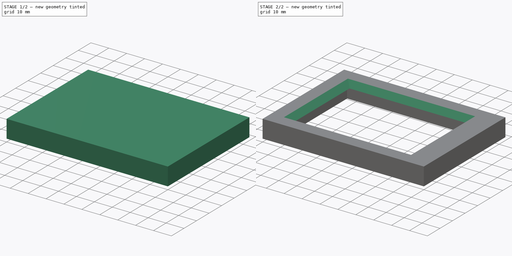
[diagram: build sequence overview — one tinted view per stage of 2, left to right]
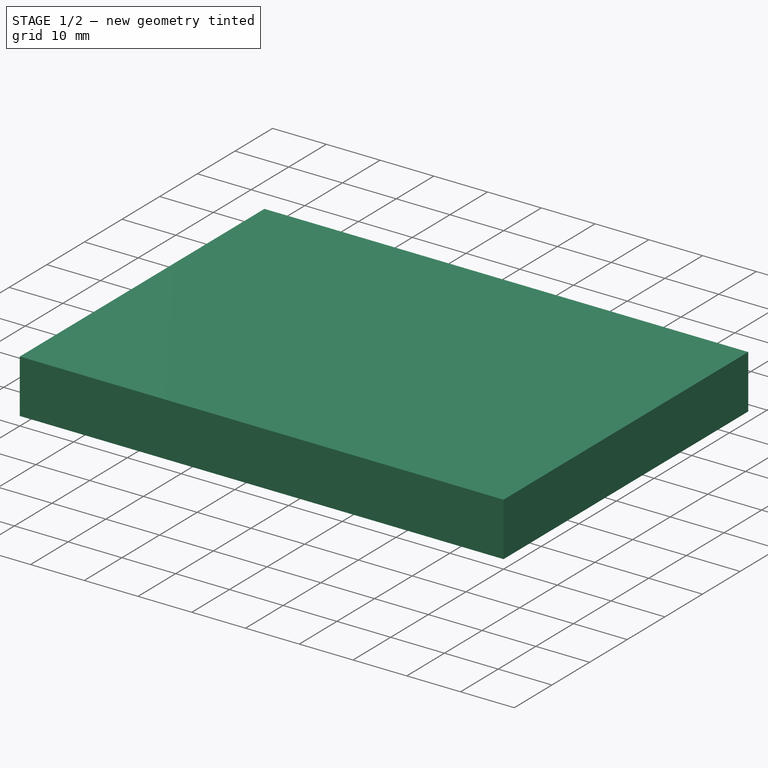
[diagram: stage 1 of 2 — iso view after this stage's code; geometry added in this stage tinted green]
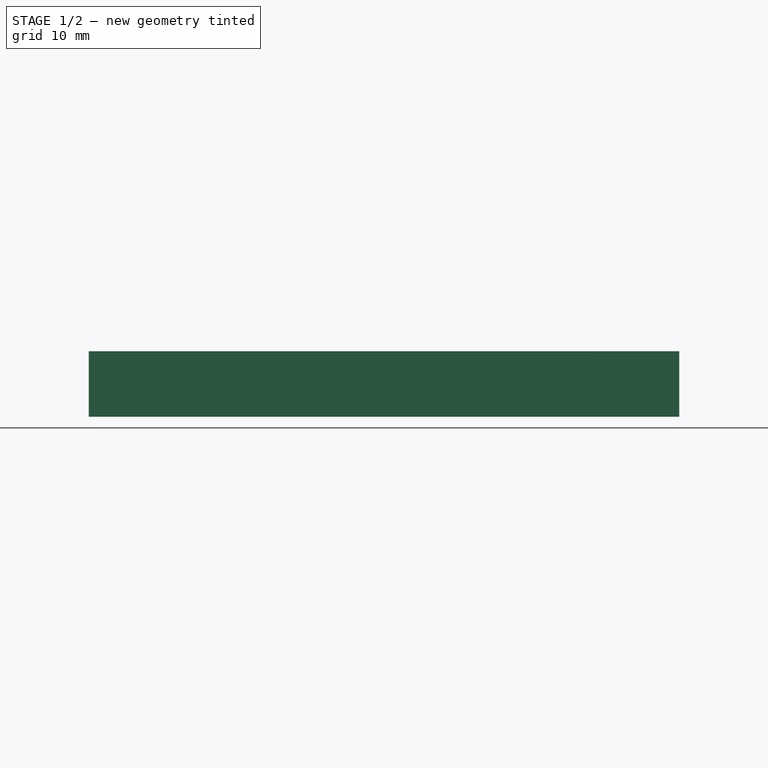
[diagram: stage 1 of 2 — front view after this stage's code; geometry added in this stage tinted green]
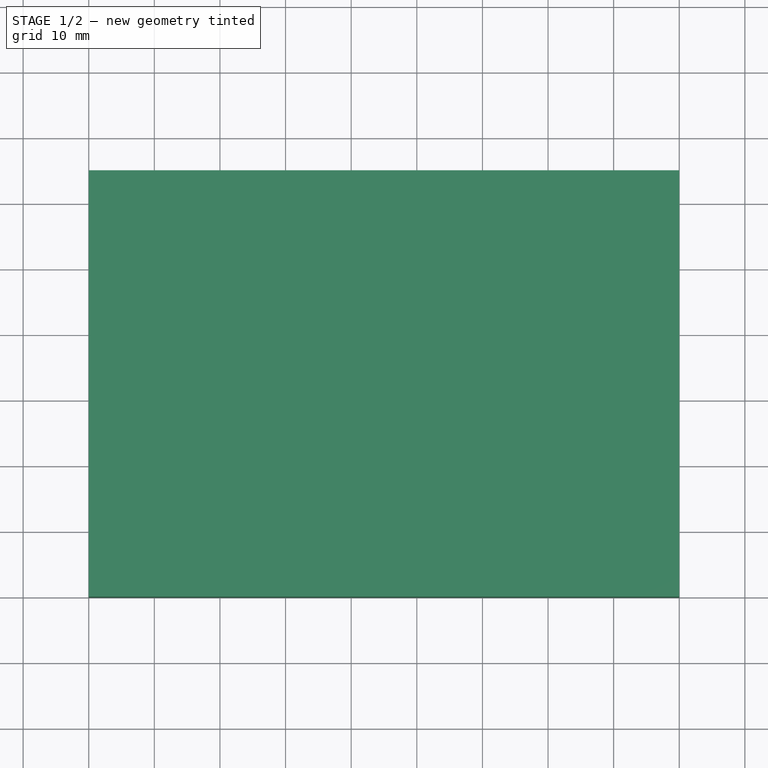
[diagram: stage 1 of 2 — top view after this stage's code; geometry added in this stage tinted green]
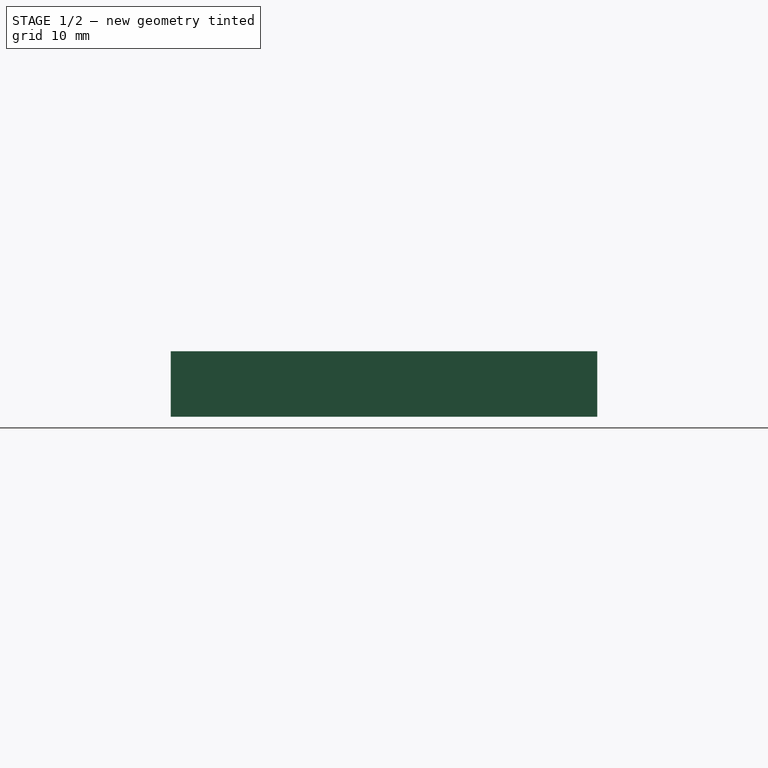
[diagram: stage 1 of 2 — right view after this stage's code; geometry added in this stage tinted green]
FCSTD DOCUMENT  (FreeCAD 1.0R38806 (Git))
Label: Screen Fitting
License: All rights reserved
LicenseURL: https://en.wikipedia.org/wiki/All_rights_reserved
objects: Sketcher::SketchObject×5, PartDesign::Plane×1, PartDesign::Pad×1, PartDesign::Pocket×1, PartDesign::SubtractiveLoft×1, PartDesign::Body×1
note: 21 computed .brp shape members not serialized (recipe doc carries the construction recipe); baked Part::Feature solids carry a one-line shape summary decoded from their .brp

FEATURE [Sketcher::SketchObject] Sketch  label="Perimeter"
  ArcFitTolerance = 0
  FullyConstrained = true
  MakeInternals = false
  MapMode = 5
  Placement = pos=(0,0,3) rot=(0,0,1;0rad)
  sketch-geometry (4):
    g0: LineSegment StartX=0 StartY=0 StartZ=0 EndX=90 EndY=0 EndZ=0
    g1: LineSegment StartX=90 StartY=0 StartZ=0 EndX=90 EndY=65 EndZ=0
    g2: LineSegment StartX=90 StartY=65 StartZ=0 EndX=0 EndY=65 EndZ=0
    g3: LineSegment StartX=0 StartY=65 StartZ=0 EndX=0 EndY=0 EndZ=0
  constraints (11):
    c: Coincident(g0,g1)
    c: Coincident(g1,g2)
    c: Coincident(g2,g3)
    c: Coincident(g3,g0)
    c: Horizontal(g0)
    c: Horizontal(g2)
    c: Vertical(g1)
    c: Vertical(g3)
    c: Coincident(g0,g-1)
    c: DistanceX(g2,g2) = 90  'case_slot_width'
    c: DistanceY(g3,g3) = 65  'case_slot_height'
FEATURE [Sketcher::SketchObject] Sketch001  label="Screen"
  ArcFitTolerance = 0
  FullyConstrained = true
  MakeInternals = false
  MapMode = 5
  sketch-geometry (4):
    g0: LineSegment StartX=10 StartY=55 StartZ=0 EndX=10 EndY=10 EndZ=0
    g1: LineSegment StartX=10 StartY=10 StartZ=0 EndX=75 EndY=10 EndZ=0
    g2: LineSegment StartX=75 StartY=10 StartZ=0 EndX=75 EndY=55 EndZ=0
    g3: LineSegment StartX=75 StartY=55 StartZ=0 EndX=10 EndY=55 EndZ=0
  constraints (12):
    c: Coincident(g0,g1)
    c: Coincident(g1,g2)
    c: Coincident(g2,g3)
    c: Coincident(g3,g0)
    c: Vertical(g0)
    c: Vertical(g2)
    c: Horizontal(g1)
    c: Horizontal(g3)
    c: DistanceX(g3,g3) = 65  'screen_width'
    c: DistanceY(g0,g0) = 45  'screen_height'
    c: DistanceX(g-1,g0) = 10  'screen_x'
    c: DistanceY(g-1,g0) = 10  'screen_y'
FEATURE [Sketcher::SketchObject] Sketch002  label="Ruler"
  ArcFitTolerance = 0
  FullyConstrained = true
  MakeInternals = false
  MapMode = 5
  sketch-geometry (2):
    g0: LineSegment StartX=-30 StartY=0 StartZ=0 EndX=-30 EndY=3 EndZ=0
    g1: LineSegment StartX=-60 StartY=0 StartZ=0 EndX=-60 EndY=10 EndZ=0
  constraints (8):
    c: PointOnObject(g0,g-1)
    c: Vertical(g0)
    c: DistanceX(g0,g-1) = 30
    c: DistanceY(g0,g0) = 3  'screen_border'
    c: PointOnObject(g1,g-1)
    c: Vertical(g1)
    c: DistanceX(g1,g-1) = 60
    c: DistanceY(g1,g1) = 10  'part_thickness'
FEATURE [PartDesign::Plane] DatumPlane
  AttachmentOffset = pos=(0,0,3) rot=(0,0,1;0rad)
  Length = 135.347
  MapMode = 5
  Placement = pos=(0,0,3) rot=(0,0,1;0rad)
  ResizeMode = 0
  Width = 110.347
  expr: .AttachmentOffset.Base.z = <<Ruler>>.Constraints.screen_border
FEATURE [Sketcher::SketchObject] Sketch003  label="Screen_Border"
  ArcFitTolerance = 0
  ExternalGeometry = -> [Sketch001]
  FullyConstrained = true
  MakeInternals = false
  MapMode = 5
  Placement = pos=(0,0,3) rot=(0,0,1;0rad)
  expr: Constraints[10] = .Constraints.fillet_y
  expr: Constraints[11] = .Constraints.fillet_x
  sketch-geometry (4):
    g0: LineSegment StartX=7 StartY=58 StartZ=0 EndX=7 EndY=7 EndZ=0
    g1: LineSegment StartX=7 StartY=7 StartZ=0 EndX=78 EndY=7 EndZ=0
    g2: LineSegment StartX=78 StartY=7 StartZ=0 EndX=78 EndY=58 EndZ=0
    g3: LineSegment StartX=78 StartY=58 StartZ=0 EndX=7 EndY=58 EndZ=0
  constraints (12):
    c: Coincident(g0,g1)
    c: Coincident(g1,g2)
    c: Coincident(g2,g3)
    c: Coincident(g3,g0)
    c: Vertical(g0)
    c: Vertical(g2)
    c: Horizontal(g1)
    c: Horizontal(g3)
    c: DistanceX(g0,g-3) = 3  'fillet_x'
    c: DistanceY(g-3,g0) = 3  'fillet_y'
    c: DistanceY(g1,g-4) = 3
    c: DistanceX(g-4,g1) = 3
FEATURE [Sketcher::SketchObject] Sketch004  label="Screen_Slot"
  ArcFitTolerance = 0
  FullyConstrained = true
  MakeInternals = false
  MapMode = 5
  sketch-geometry (4):
    g0: LineSegment StartX=6.75 StartY=57.75 StartZ=0 EndX=6.75 EndY=6.75 EndZ=0
    g1: LineSegment StartX=6.75 StartY=6.75 StartZ=0 EndX=77.75 EndY=6.75 EndZ=0
    g2: LineSegment StartX=77.75 StartY=6.75 StartZ=0 EndX=77.75 EndY=57.75 EndZ=0
    g3: LineSegment StartX=77.75 StartY=57.75 StartZ=0 EndX=6.75 EndY=57.75 EndZ=0
  constraints (13):
    c: Coincident(g0,g1)
    c: Coincident(g1,g2)
    c: Coincident(g2,g3)
    c: Coincident(g3,g0)
    c: Vertical(g0)
    c: Vertical(g2)
    c: Horizontal(g1)
    c: Horizontal(g3)
    c: DistanceY(g2,g2) = 51  'housing_height'
    c: DistanceX(g3,g3) = 71  'housing_width'
    c: DistanceX(g-1,g0) = 6.75  'housing_x'
    c: Distance(g-1,g-1) = 0
    c: DistanceY(g-1,g0) = 6.75  'housing_y'
FEATURE [PartDesign::Pad] Pad
  Direction = (0,0,1)
  Length = 10
  Length2 = 10
  Placement = pos=(0,0,3) rot=(0,0,1;0rad)
  Profile = -> Sketch
  ReferenceAxis = -> Sketch [N_Axis]
  Refine = true
  Reversed = true
  Suppressed = false
  Type = 0
  expr: Length = <<Ruler>>.Constraints.part_thickness
FEATURE [PartDesign::Pocket] Pocket
  BaseFeature = -> Pad
  Direction = (0,0,-1)
  Length = 7
  Length2 = 5
  Placement = pos=(0,0,3) rot=(0,0,1;0rad)
  Profile = -> Sketch004
  ReferenceAxis = -> Sketch004 [N_Axis]
  Refine = true
  Suppressed = false
  Type = 0
  expr: Length = <<Ruler>>.Constraints.part_thickness - <<Ruler>>.Constraints.screen_border
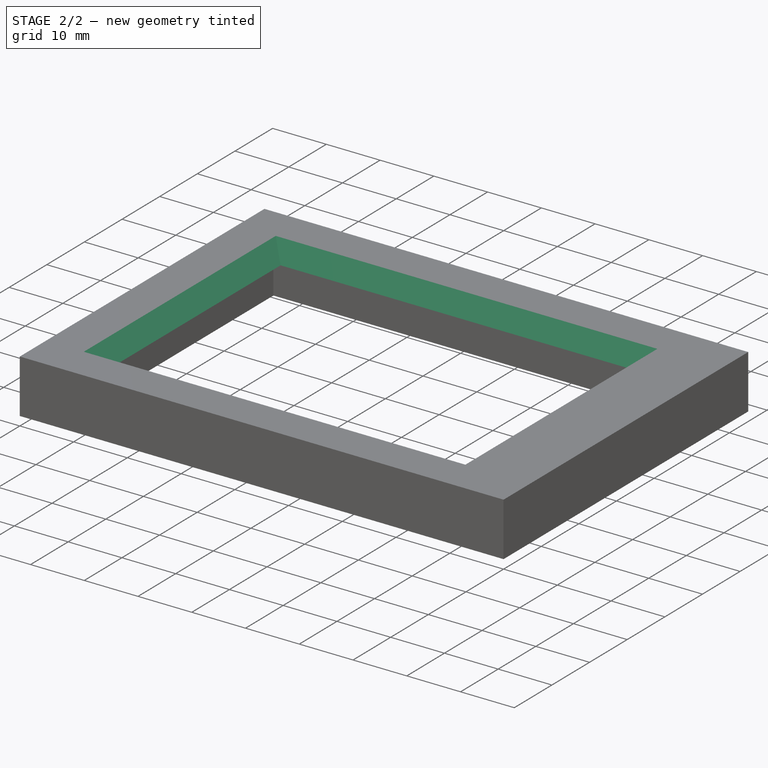
[diagram: stage 2 of 2 — iso view after this stage's code; geometry added in this stage tinted green]
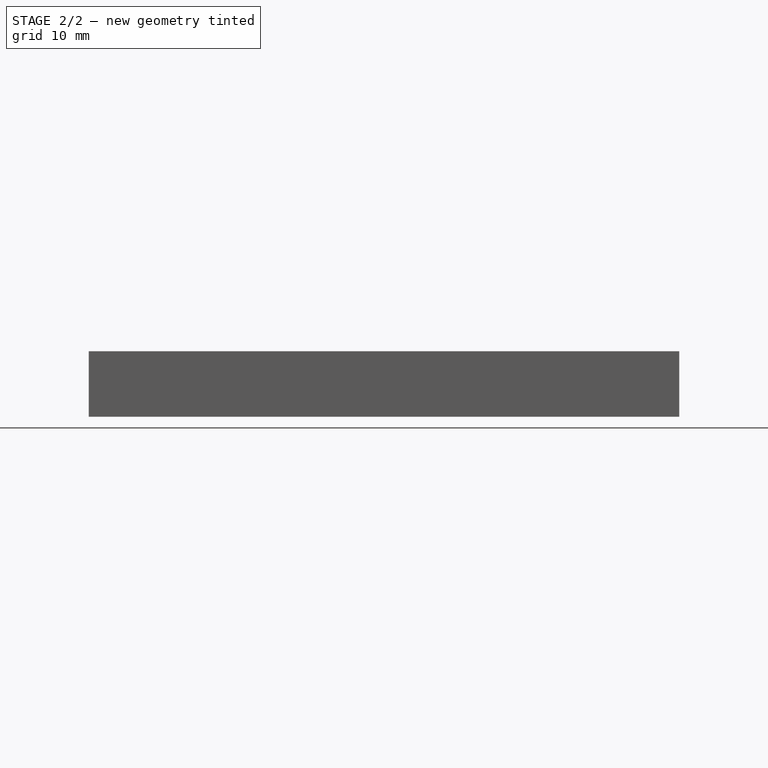
[diagram: stage 2 of 2 — front view after this stage's code; geometry added in this stage tinted green]
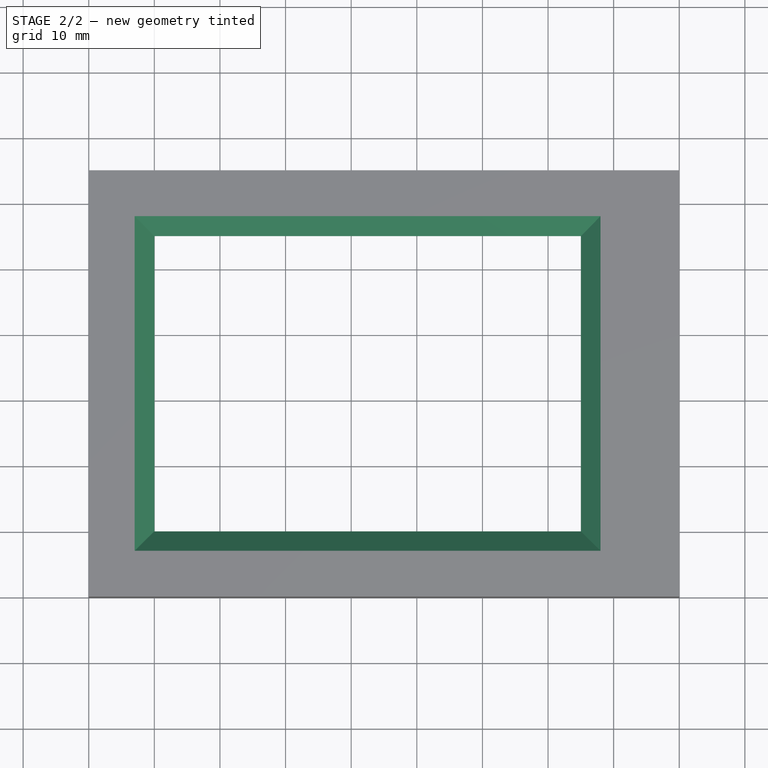
[diagram: stage 2 of 2 — top view after this stage's code; geometry added in this stage tinted green]
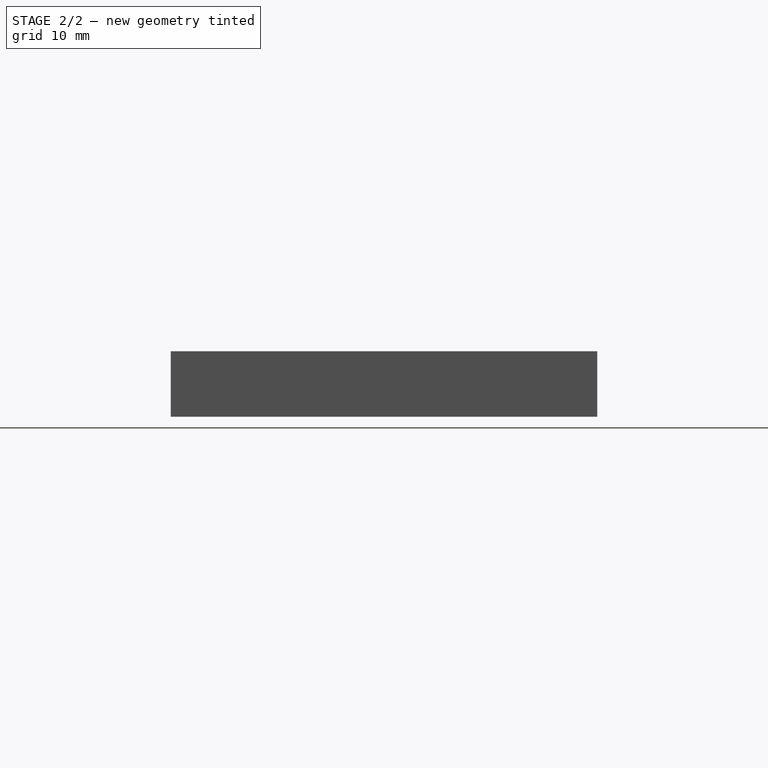
[diagram: stage 2 of 2 — right view after this stage's code; geometry added in this stage tinted green]
FEATURE [PartDesign::SubtractiveLoft] SubtractiveLoft
  BaseFeature = -> Pocket
  Closed = false
  Placement = pos=(0,0,3) rot=(0,0,1;0rad)
  Profile = -> Sketch003
  Refine = true
  Ruled = false
  Sections = -> [Sketch001]
  Suppressed = false
FEATURE [PartDesign::Body] Body
  AllowCompound = false
  Group = -> [Sketch,Sketch001,Sketch002,DatumPlane,Sketch003,Sketch004,Pad,Pocket,SubtractiveLoft]
  Origin = -> Origin
  Tip = -> SubtractiveLoft
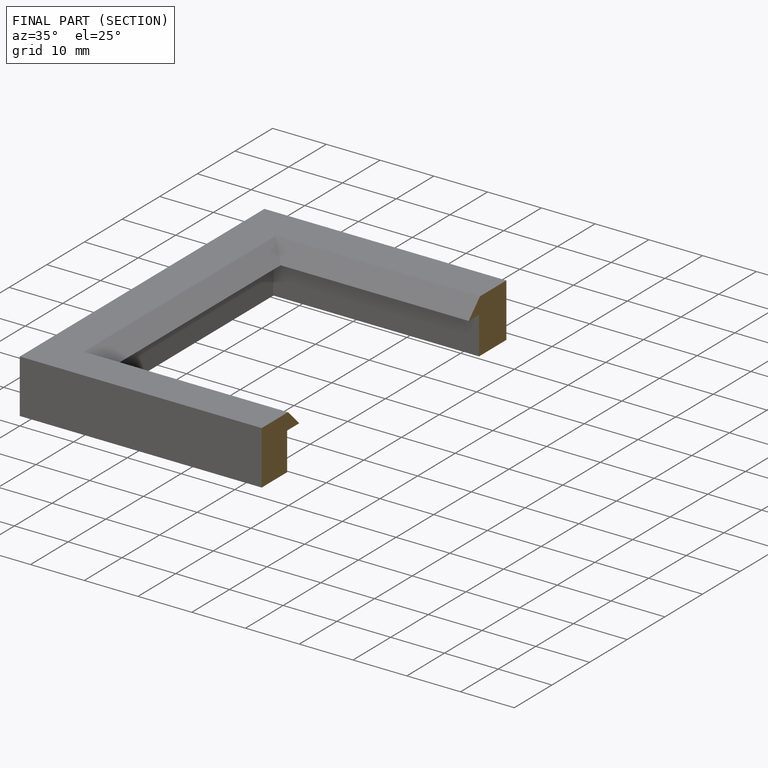
[diagram: finished part — half-section view (interior)]
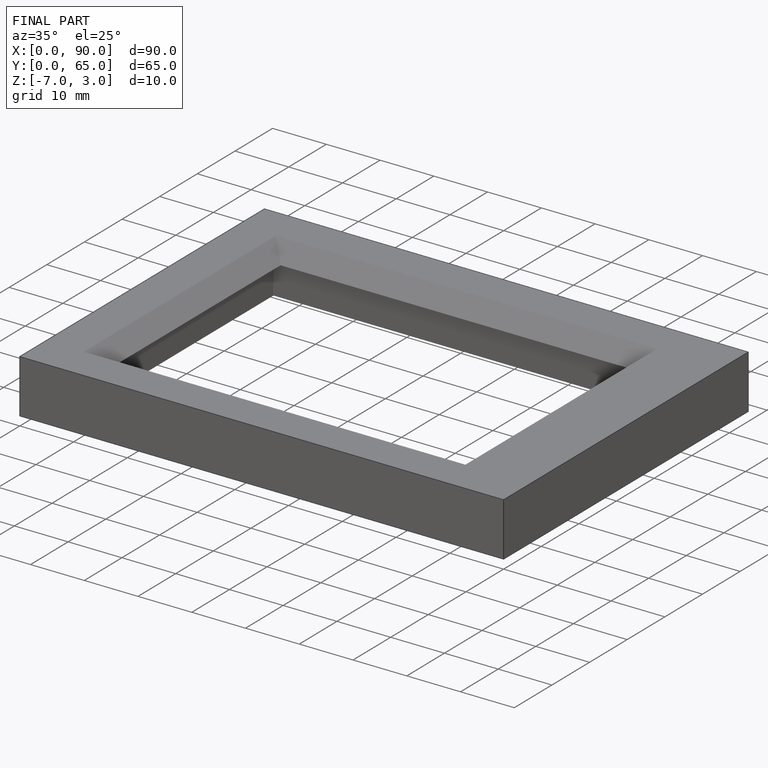
[diagram: finished part — iso view with bounding-box wireframe]
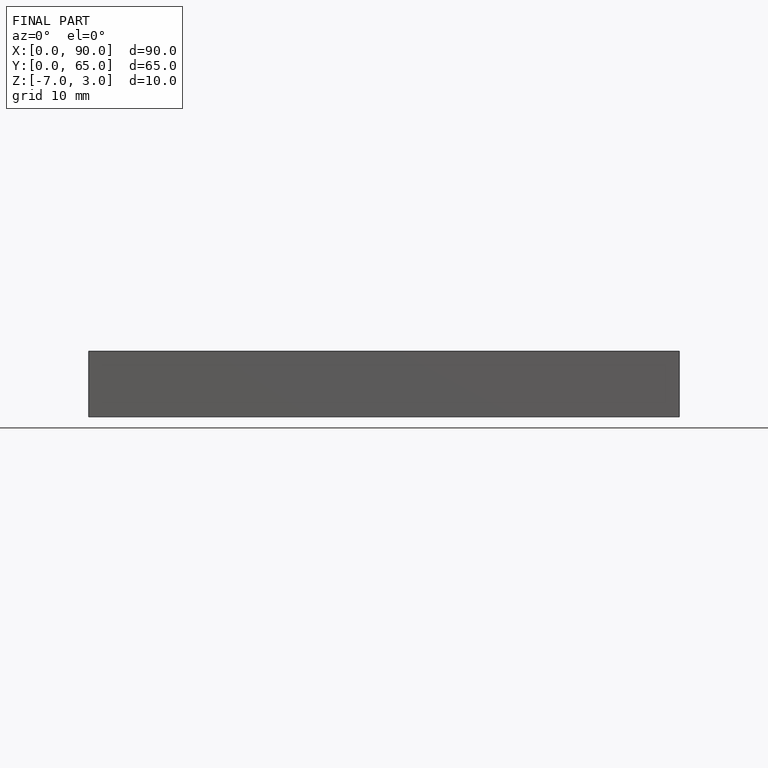
[diagram: finished part — front view with bounding-box wireframe]
